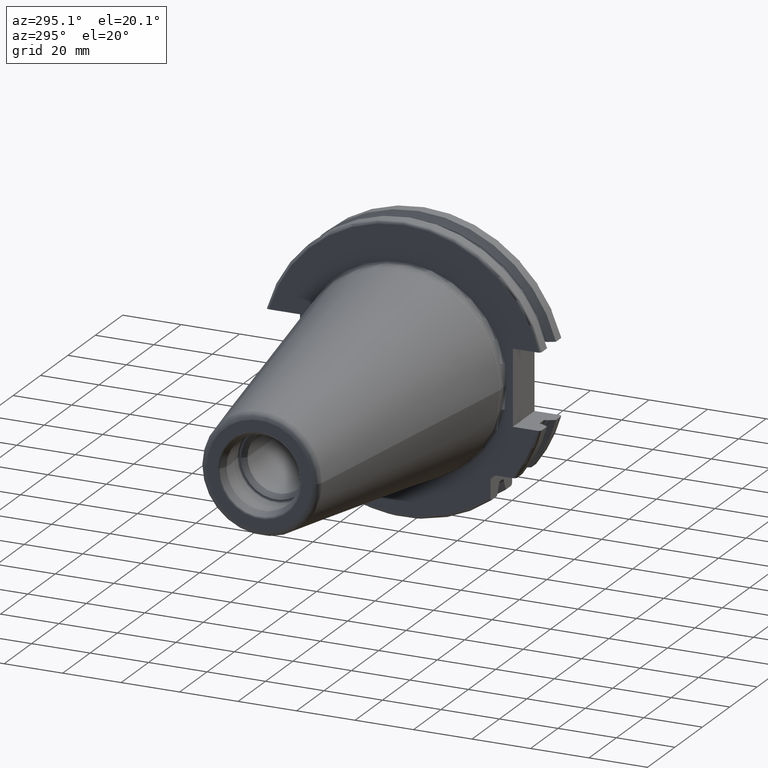
[diagram: clean part render]
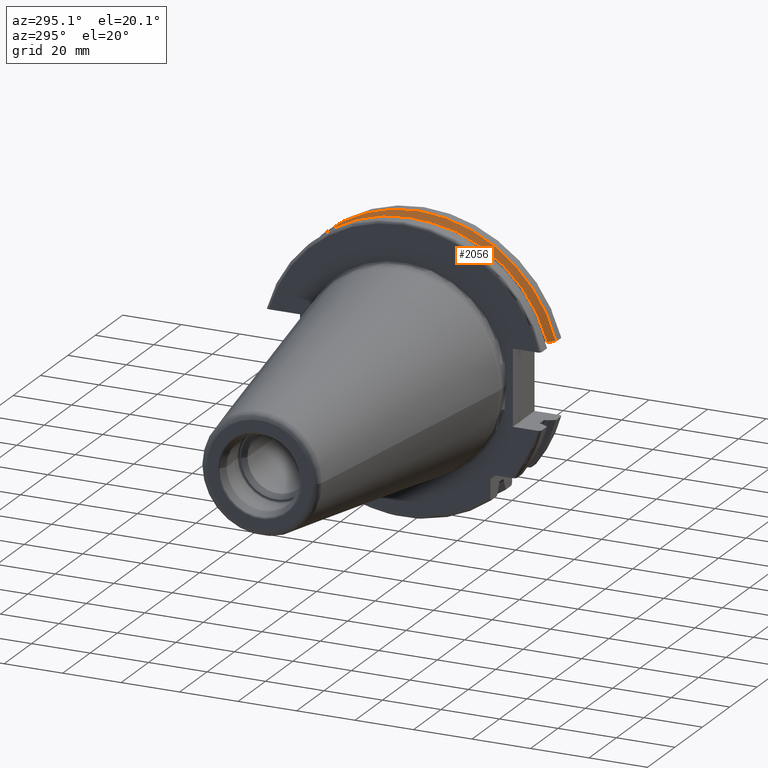
[diagram: same view with one face highlighted and labeled with its STEP entity id]
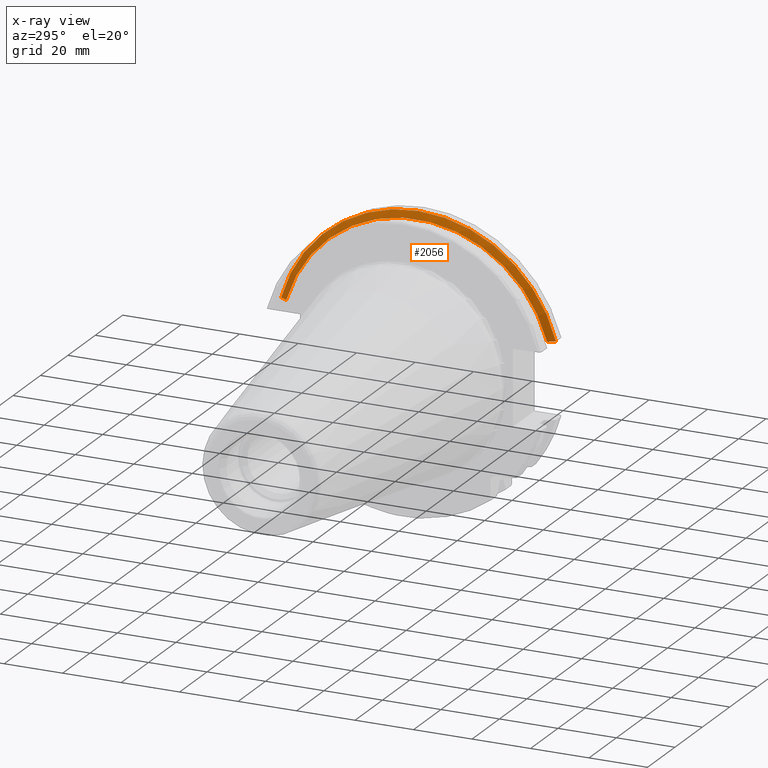
[diagram: x-ray of the same camera — body ghosted, the highlighted face saturated]
A machine part, auxiliary view. The second image highlights one B-rep face of the part: STEP entity #2056.
The next image is the same camera in x-ray: the body ghosted, the highlighted face saturated — about 0% of this face is hidden behind the body in this view.
In plain terms, the highlighted conical surface has half-angle 60 deg.
Its self-contained STEP definition (entity closure, byte-faithful):
#457=CARTESIAN_POINT('',(1.441537838583E1,4.699929686974E1,1.29E1));
#458=CARTESIAN_POINT('',(1.426451908496E1,4.672833723043E1,1.29E1));
#459=CARTESIAN_POINT('',(1.396501135619E1,4.619006057422E1,1.29E1));
#460=CARTESIAN_POINT('',(1.352242021955E1,4.539363402665E1,1.29E1));
#461=CARTESIAN_POINT('',(1.323173924582E1,4.486988275438E1,1.29E1));
#462=CARTESIAN_POINT('',(1.30875E1,4.460981716077E1,1.29E1));
#464=CARTESIAN_POINT('',(1.30875E1,-4.460981716077E1,1.29E1));
#465=CARTESIAN_POINT('',(1.323171622645E1,-4.486984125009E1,1.29E1));
#466=CARTESIAN_POINT('',(1.352236645045E1,-4.539353719098E1,1.29E1));
#467=CARTESIAN_POINT('',(1.396495664446E1,-4.618996220278E1,1.29E1));
#468=CARTESIAN_POINT('',(1.426449561388E1,-4.672829507383E1,1.29E1));
#469=CARTESIAN_POINT('',(1.441537838583E1,-4.699929686974E1,1.29E1));
#471=CARTESIAN_POINT('',(1.30875E1,0.E0,0.E0));
#472=DIRECTION('',(1.E0,0.E0,0.E0));
#473=DIRECTION('',(0.E0,9.606411165078E-1,2.777924499957E-1));
#474=AXIS2_PLACEMENT_3D('',#471,#472,#473);
#502=CARTESIAN_POINT('',(1.441537838583E1,0.E0,0.E0));
#503=DIRECTION('',(1.E0,0.E0,0.E0));
#504=DIRECTION('',(0.E0,9.643354064066E-1,2.646832521159E-1));
#505=AXIS2_PLACEMENT_3D('',#502,#503,#504);
#1302=CARTESIAN_POINT('',(1.30875E1,4.460981716077E1,1.29E1));
#1303=VERTEX_POINT('',#1302);
#1312=CARTESIAN_POINT('',(1.30875E1,-4.460981716077E1,1.29E1));
#1313=VERTEX_POINT('',#1312);
#1314=VERTEX_POINT('',#457);
#1315=VERTEX_POINT('',#469);
#2044=CARTESIAN_POINT('',(1.375143919291E1,0.E0,0.E0));
#2045=DIRECTION('',(1.E0,0.E0,0.E0));
#2046=DIRECTION('',(0.E0,-1.E0,0.E0));
#2047=AXIS2_PLACEMENT_3D('',#2044,#2045,#2046);
#2048=CONICAL_SURFACE('',#2047,4.758752358474E1,6.E1);
#2049=ORIENTED_EDGE('',*,*,#1904,.F.);
#2051=ORIENTED_EDGE('',*,*,#2050,.T.);
#2052=ORIENTED_EDGE('',*,*,#1945,.F.);
#2053=ORIENTED_EDGE('',*,*,#2008,.F.);
#2054=EDGE_LOOP('',(#2049,#2051,#2052,#2053));
#2055=FACE_OUTER_BOUND('',#2054,.F.);
#2056=ADVANCED_FACE('',(#2055),#2048,.T.);
#463=B_SPLINE_CURVE_WITH_KNOTS('',3,(#457,#458,#459,#460,#461,#462),
.UNSPECIFIED.,.F.,.F.,(4,1,1,4),(0.E0,3.333333333333E-1,6.666666666667E-1,1.E0),
.UNSPECIFIED.);
#470=B_SPLINE_CURVE_WITH_KNOTS('',3,(#464,#465,#466,#467,#468,#469),
.UNSPECIFIED.,.F.,.F.,(4,1,1,4),(0.E0,3.333333333333E-1,6.666666666667E-1,1.E0),
.UNSPECIFIED.);
#475=CIRCLE('',#474,4.643754716948E1);
#506=CIRCLE('',#505,4.87375E1);
#1904=EDGE_CURVE('',#1314,#1303,#463,.T.);
#1945=EDGE_CURVE('',#1313,#1315,#470,.T.);
#2008=EDGE_CURVE('',#1303,#1313,#475,.T.);
#2050=EDGE_CURVE('',#1314,#1315,#506,.T.);